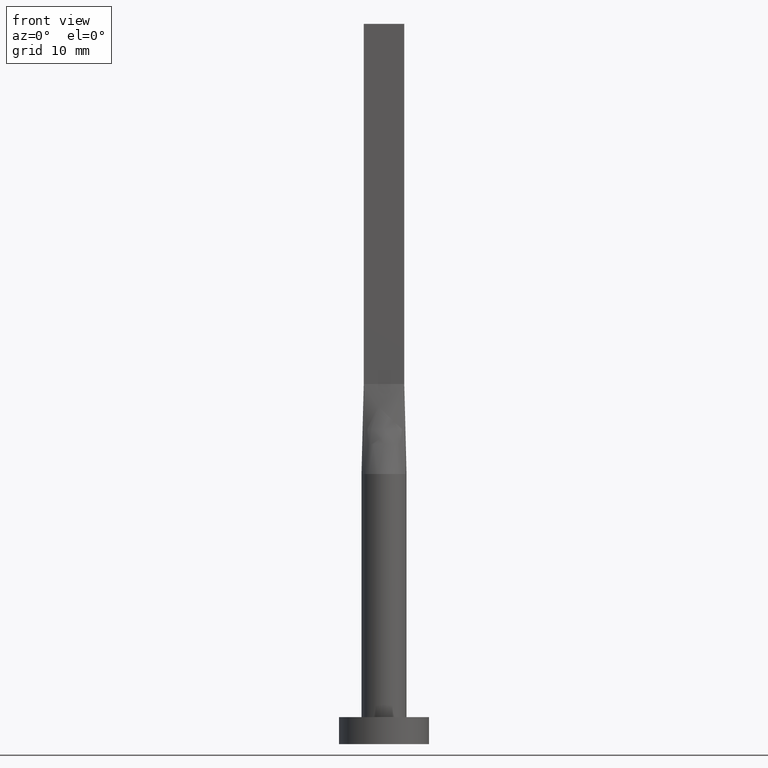
[diagram: clean part render]
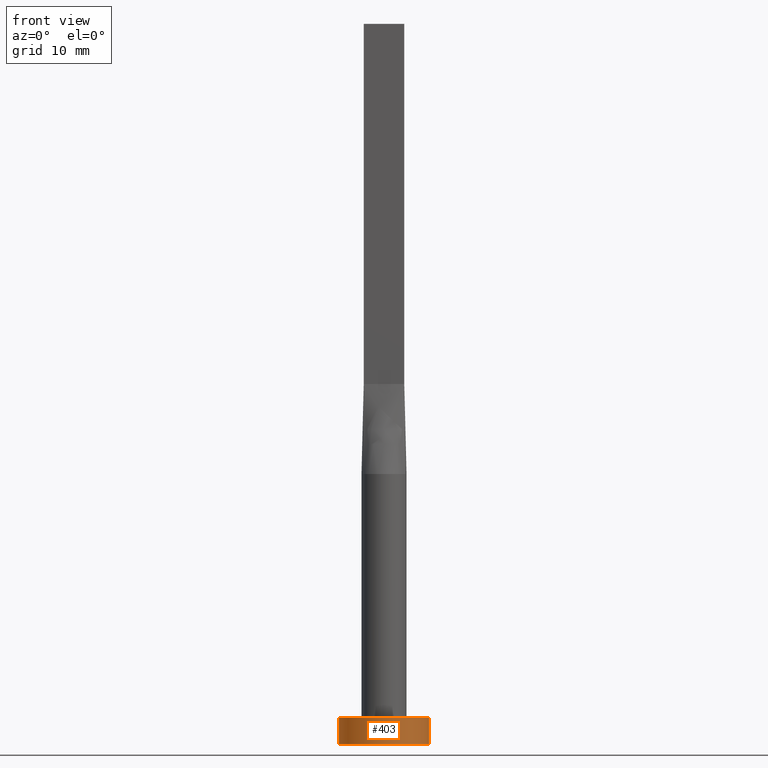
[diagram: same view with one face highlighted and labeled with its STEP entity id]
A machine part, front view. The second image highlights one B-rep face of the part: STEP entity #403.
In plain terms, the highlighted cylindrical surface (partial cylindrical patch) has radius 5 mm, axis along (-0, -0, -1).
Its self-contained STEP definition (entity closure, byte-faithful):
#7 = CARTESIAN_POINT ( 'NONE',  ( -5.000000000000000000, 0.000000000000000000, 0.000000000000000000 ) ) ;
#8 = CARTESIAN_POINT ( 'NONE',  ( 5.000000000000000000, 6.123233995736766282E-16, 3.000000000000000000 ) ) ;
#32 = CIRCLE ( 'NONE', #76, 5.000000000000000000 ) ;
#46 = ORIENTED_EDGE ( 'NONE', *, *, #260, .F. ) ;
#65 = CARTESIAN_POINT ( 'NONE',  ( -5.000000000000000000, 0.000000000000000000, 3.000000000000000000 ) ) ;
#75 = CARTESIAN_POINT ( 'NONE',  ( -5.000000000000000000, 0.000000000000000000, 3.000000000000000000 ) ) ;
#76 = AXIS2_PLACEMENT_3D ( 'NONE', #480, #559, #388 ) ;
#129 = DIRECTION ( 'NONE',  ( -1.000000000000000000, 0.000000000000000000, 0.000000000000000000 ) ) ;
#133 = DIRECTION ( 'NONE',  ( 0.000000000000000000, 0.000000000000000000, 1.000000000000000000 ) ) ;
#138 = LINE ( 'NONE', #65, #227 ) ;
#140 = EDGE_LOOP ( 'NONE', ( #46, #319, #533, #370 ) ) ;
#141 = EDGE_CURVE ( 'NONE', #487, #455, #418, .T. ) ;
#161 = VECTOR ( 'NONE', #226, 1000.000000000000000 ) ;
#170 = CARTESIAN_POINT ( 'NONE',  ( 0.000000000000000000, 0.000000000000000000, 3.000000000000000000 ) ) ;
#222 = DIRECTION ( 'NONE',  ( 1.000000000000000000, 0.000000000000000000, 0.000000000000000000 ) ) ;
#226 = DIRECTION ( 'NONE',  ( -0.000000000000000000, -0.000000000000000000, -1.000000000000000000 ) ) ;
#227 = VECTOR ( 'NONE', #523, 1000.000000000000000 ) ;
#230 = VERTEX_POINT ( 'NONE', #508 ) ;
#250 = AXIS2_PLACEMENT_3D ( 'NONE', #170, #296, #129 ) ;
#260 = EDGE_CURVE ( 'NONE', #230, #455, #416, .T. ) ;
#296 = DIRECTION ( 'NONE',  ( -0.000000000000000000, -0.000000000000000000, -1.000000000000000000 ) ) ;
#297 = EDGE_CURVE ( 'NONE', #341, #487, #138, .T. ) ;
#307 = EDGE_CURVE ( 'NONE', #341, #230, #32, .T. ) ;
#319 = ORIENTED_EDGE ( 'NONE', *, *, #307, .F. ) ;
#341 = VERTEX_POINT ( 'NONE', #75 ) ;
#344 = CYLINDRICAL_SURFACE ( 'NONE', #250, 5.000000000000000000 ) ;
#349 = CARTESIAN_POINT ( 'NONE',  ( 5.000000000000000000, 6.123233995736766282E-16, 0.000000000000000000 ) ) ;
#370 = ORIENTED_EDGE ( 'NONE', *, *, #141, .T. ) ;
#387 = AXIS2_PLACEMENT_3D ( 'NONE', #510, #133, #222 ) ;
#388 = DIRECTION ( 'NONE',  ( 1.000000000000000000, 0.000000000000000000, 0.000000000000000000 ) ) ;
#391 = FACE_OUTER_BOUND ( 'NONE', #140, .T. ) ;
#403 = ADVANCED_FACE ( 'NONE', ( #391 ), #344, .T. ) ;
#416 = LINE ( 'NONE', #8, #161 ) ;
#418 = CIRCLE ( 'NONE', #387, 5.000000000000000000 ) ;
#455 = VERTEX_POINT ( 'NONE', #349 ) ;
#480 = CARTESIAN_POINT ( 'NONE',  ( 0.000000000000000000, 0.000000000000000000, 3.000000000000000000 ) ) ;
#487 = VERTEX_POINT ( 'NONE', #7 ) ;
#508 = CARTESIAN_POINT ( 'NONE',  ( 5.000000000000000000, 6.123233995736766282E-16, 3.000000000000000000 ) ) ;
#510 = CARTESIAN_POINT ( 'NONE',  ( 0.000000000000000000, 0.000000000000000000, 0.000000000000000000 ) ) ;
#523 = DIRECTION ( 'NONE',  ( -0.000000000000000000, -0.000000000000000000, -1.000000000000000000 ) ) ;
#533 = ORIENTED_EDGE ( 'NONE', *, *, #297, .T. ) ;
#559 = DIRECTION ( 'NONE',  ( 0.000000000000000000, 0.000000000000000000, 1.000000000000000000 ) ) ;